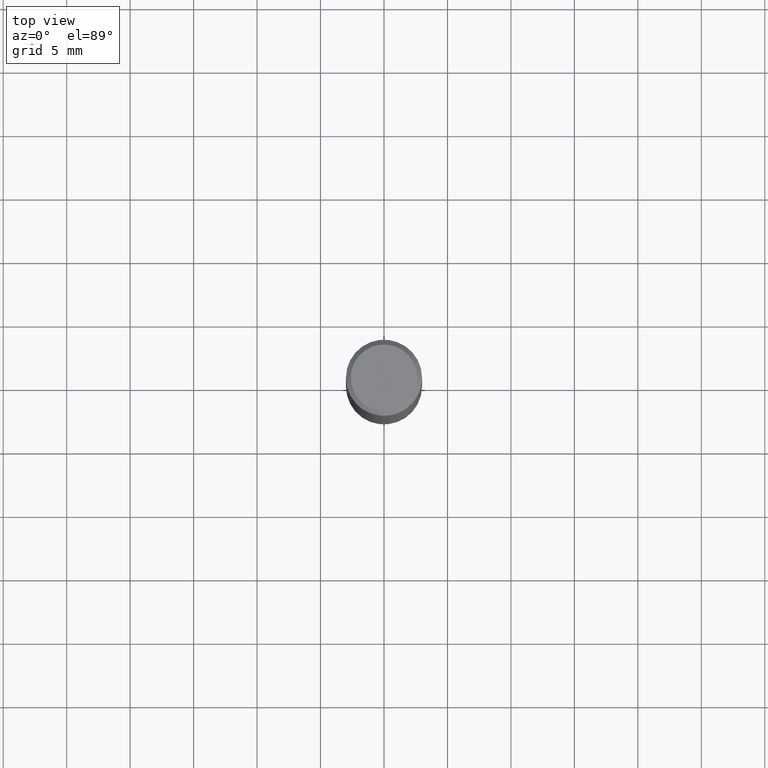
[diagram: clean part render]
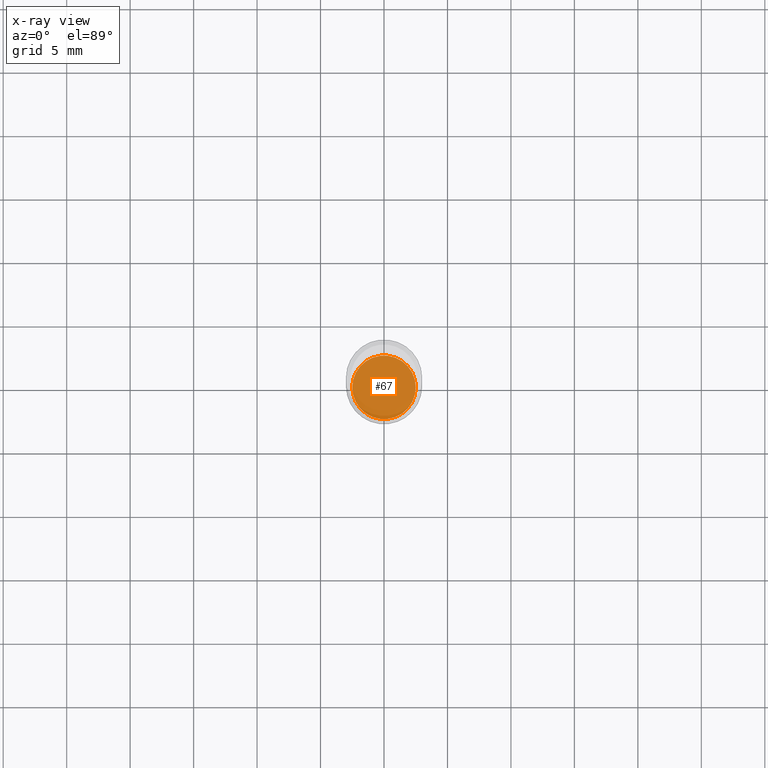
[diagram: x-ray — body ghosted, one internal face saturated and labeled with its STEP entity id]
A machine part, top view, then the same camera in x-ray: the body is ghosted and one INTERNAL B-rep face — a face not visible from any outside direction — is saturated and labeled: STEP entity #67.
In plain terms, the highlighted planar face has unit normal (0, -0, -1).
Its self-contained STEP definition (entity closure, byte-faithful):
#1 = AXIS2_PLACEMENT_3D ( 'NONE', #345, #55, #167 ) ;
#22 = ORIENTED_EDGE ( 'NONE', *, *, #52, .T. ) ;
#26 = AXIS2_PLACEMENT_3D ( 'NONE', #50, #243, #132 ) ;
#50 = CARTESIAN_POINT ( 'NONE',  ( 4.236285612954512392E-29, -6.048293123277981078E-15, -1.732299999999999951 ) ) ;
#52 = EDGE_CURVE ( 'NONE', #268, #463, #431, .T. ) ;
#55 = DIRECTION ( 'NONE',  ( 2.438088387897960049E-29, -3.491481338843145188E-15, -1.000000000000000000 ) ) ;
#67 = ADVANCED_FACE ( 'NONE', ( #306 ), #195, .F. ) ;
#102 = EDGE_LOOP ( 'NONE', ( #22, #352 ) ) ;
#132 = DIRECTION ( 'NONE',  ( 1.000000000000000000, -6.982962677686265133E-15, 0.000000000000000000 ) ) ;
#137 = DIRECTION ( 'NONE',  ( 1.000000000000000000, -6.982962677686265133E-15, 0.000000000000000000 ) ) ;
#167 = DIRECTION ( 'NONE',  ( -1.000000000000000000, 6.982962677686265922E-15, -4.876176775795935793E-29 ) ) ;
#195 = PLANE ( 'NONE',  #1 ) ;
#234 = CARTESIAN_POINT ( 'NONE',  ( 0.09845000000000000973, -6.735765798896194427E-15, -1.732299999999999951 ) ) ;
#243 = DIRECTION ( 'NONE',  ( -2.445468806185136597E-29, 3.491481338843145583E-15, 1.000000000000000000 ) ) ;
#247 = CIRCLE ( 'NONE', #399, 0.09845000000000000973 ) ;
#268 = VERTEX_POINT ( 'NONE', #234 ) ;
#306 = FACE_OUTER_BOUND ( 'NONE', #102, .T. ) ;
#322 = CARTESIAN_POINT ( 'NONE',  ( 4.236285612954512392E-29, -6.048293123277981078E-15, -1.732299999999999951 ) ) ;
#325 = EDGE_CURVE ( 'NONE', #463, #268, #247, .T. ) ;
#345 = CARTESIAN_POINT ( 'NONE',  ( 6.874726756182552572E-16, 0.09844999999999397289, -1.732300000000000173 ) ) ;
#352 = ORIENTED_EDGE ( 'NONE', *, *, #325, .T. ) ;
#373 = CARTESIAN_POINT ( 'NONE',  ( -0.09845000000000000973, -6.242233874532123993E-15, -1.732299999999999951 ) ) ;
#399 = AXIS2_PLACEMENT_3D ( 'NONE', #322, #436, #137 ) ;
#431 = CIRCLE ( 'NONE', #26, 0.09845000000000000973 ) ;
#436 = DIRECTION ( 'NONE',  ( -2.445468806185136597E-29, 3.491481338843145583E-15, 1.000000000000000000 ) ) ;
#463 = VERTEX_POINT ( 'NONE', #373 ) ;